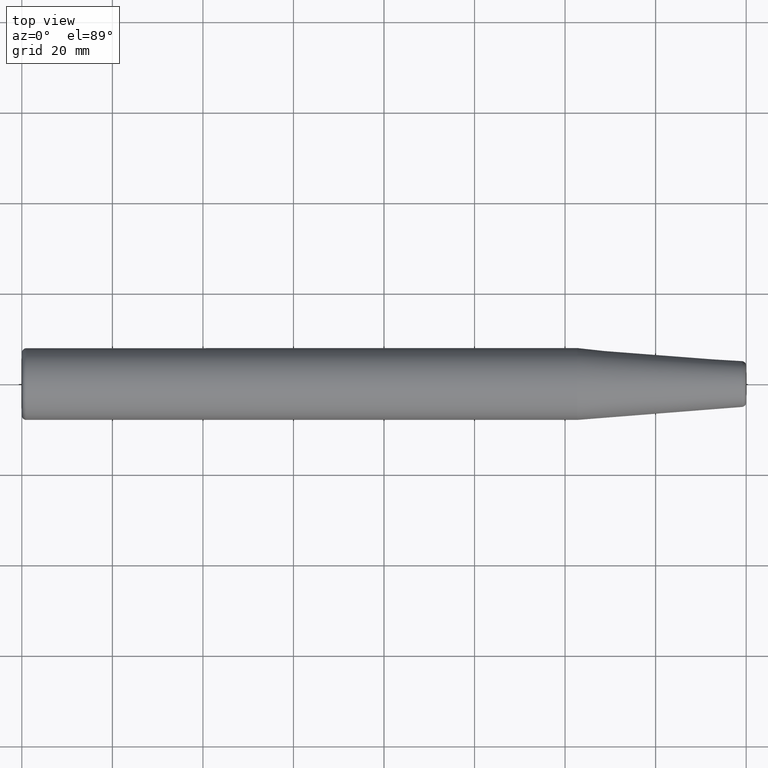
[diagram: clean part render]
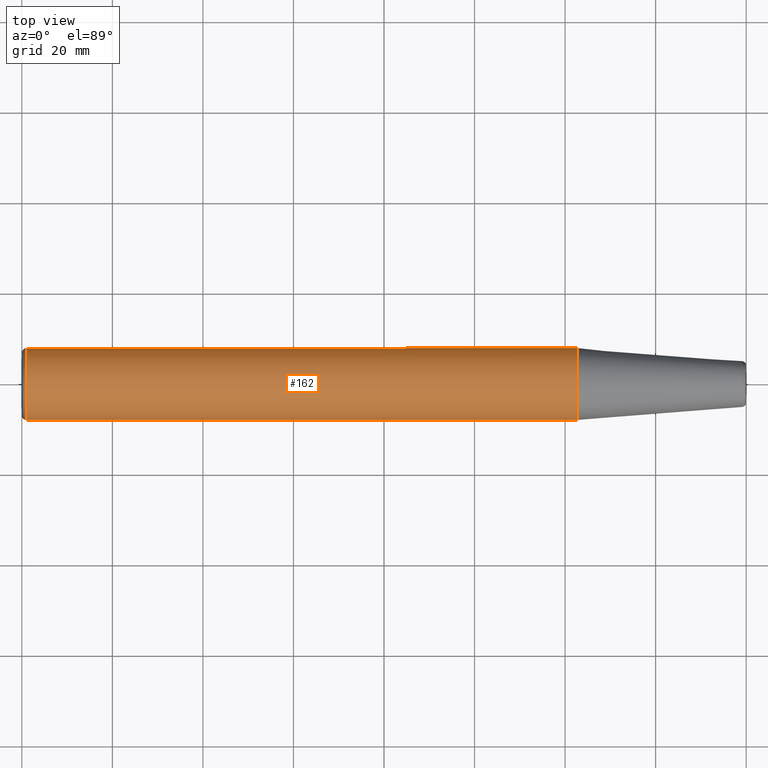
[diagram: same view with one face highlighted and labeled with its STEP entity id]
A machine part, top view. The second image highlights one B-rep face of the part: STEP entity #162.
In plain terms, the highlighted cylindrical surface (bore or boss wall) has radius 7.9375 mm, axis along (-1, 0, 0).
Its self-contained STEP definition (entity closure, byte-faithful):
#24=LINE('',#313,#29);
#29=VECTOR('',#261,7.93749999999999);
#33=CYLINDRICAL_SURFACE('',#208,7.93749999999999);
#40=FACE_OUTER_BOUND('',#51,.T.);
#51=EDGE_LOOP('',(#136,#137,#138,#139,#140));
#67=CIRCLE('',#206,7.93749999999999);
#68=CIRCLE('',#207,7.93749999999999);
#69=CIRCLE('',#209,7.9375);
#82=VERTEX_POINT('',#306);
#83=VERTEX_POINT('',#308);
#84=VERTEX_POINT('',#312);
#101=EDGE_CURVE('',#82,#83,#67,.T.);
#102=EDGE_CURVE('',#83,#82,#68,.T.);
#103=EDGE_CURVE('',#83,#84,#24,.T.);
#104=EDGE_CURVE('',#84,#84,#69,.T.);
#136=ORIENTED_EDGE('',*,*,#102,.F.);
#137=ORIENTED_EDGE('',*,*,#103,.T.);
#138=ORIENTED_EDGE('',*,*,#104,.T.);
#139=ORIENTED_EDGE('',*,*,#103,.F.);
#140=ORIENTED_EDGE('',*,*,#101,.F.);
#162=ADVANCED_FACE('',(#40),#33,.T.);
#206=AXIS2_PLACEMENT_3D('',#309,#255,#256);
#207=AXIS2_PLACEMENT_3D('',#310,#257,#258);
#208=AXIS2_PLACEMENT_3D('',#311,#259,#260);
#209=AXIS2_PLACEMENT_3D('',#314,#262,#263);
#255=DIRECTION('center_axis',(-1.,0.,0.));
#256=DIRECTION('ref_axis',(0.,-1.,-1.83697019872103E-16));
#257=DIRECTION('center_axis',(-1.,0.,0.));
#258=DIRECTION('ref_axis',(0.,-1.,-1.83697019872103E-16));
#259=DIRECTION('center_axis',(-1.,0.,0.));
#260=DIRECTION('ref_axis',(0.,1.,0.));
#261=DIRECTION('',(1.,0.,0.));
#262=DIRECTION('center_axis',(-1.,0.,0.));
#263=DIRECTION('ref_axis',(0.,0.,1.));
#306=CARTESIAN_POINT('',(-159.,-9.7206339682321E-16,-7.93749999999999));
#308=CARTESIAN_POINT('',(-159.,-7.93749999999999,9.7206339682321E-16));
#309=CARTESIAN_POINT('Origin',(-159.,0.,0.));
#310=CARTESIAN_POINT('Origin',(-159.,0.,0.));
#311=CARTESIAN_POINT('Origin',(-98.6622382062565,0.,0.));
#312=CARTESIAN_POINT('',(-37.3244764125131,-7.93749999999999,9.7206339682321E-16));
#313=CARTESIAN_POINT('',(-98.6622382062565,-7.93749999999999,9.7206339682321E-16));
#314=CARTESIAN_POINT('Origin',(-37.3244764125131,0.,0.));